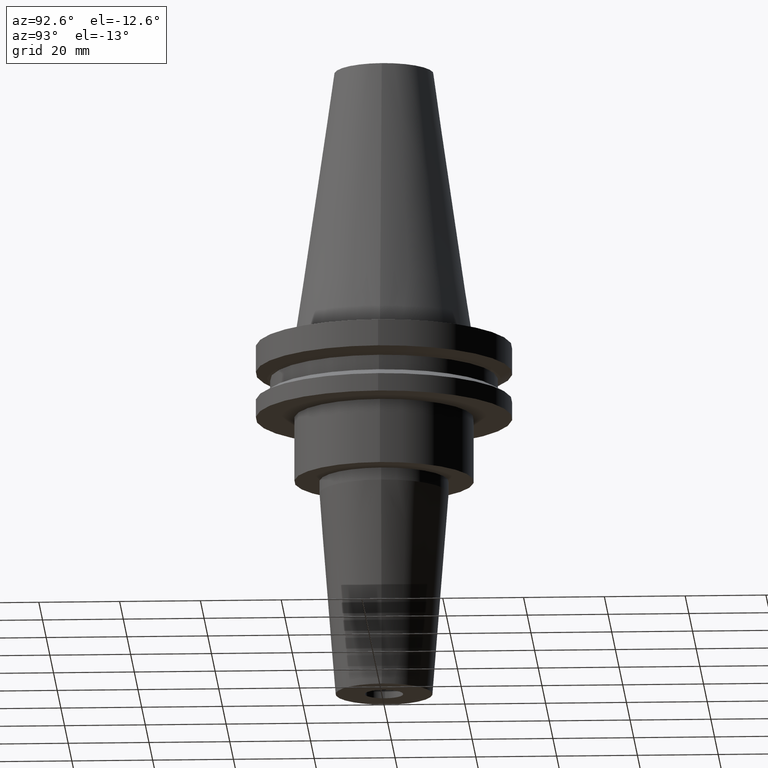
[diagram: clean part render]
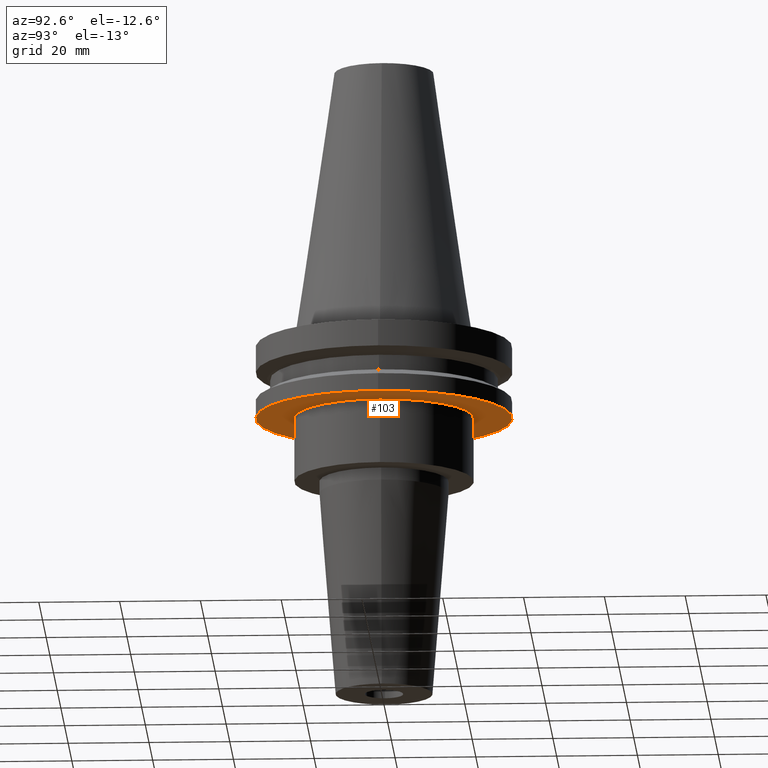
[diagram: same view with one face highlighted and labeled with its STEP entity id]
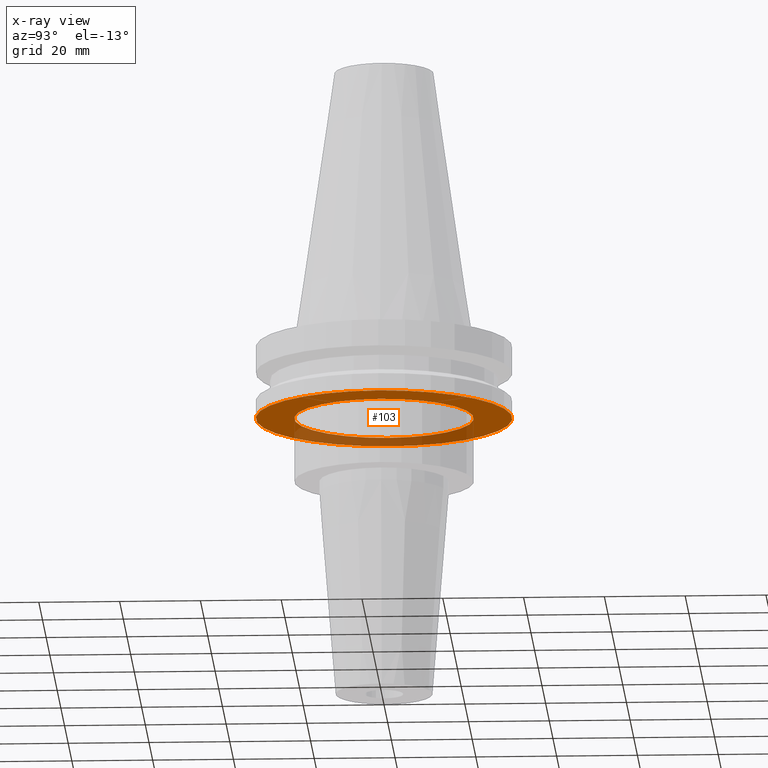
[diagram: x-ray of the same camera — body ghosted, the highlighted face saturated]
A machine part, auxiliary view. The second image highlights one B-rep face of the part: STEP entity #103.
The next image is the same camera in x-ray: the body ghosted, the highlighted face saturated — about 30% of this face is hidden behind the body in this view.
In plain terms, the highlighted planar face has unit normal (0, -0, 1).
Its self-contained STEP definition (entity closure, byte-faithful):
#7 = DIRECTION ( 'NONE',  ( 1.000000000000000000, 0.000000000000000000, 0.000000000000000000 ) ) ;
#18 = DIRECTION ( 'NONE',  ( 1.000000000000000000, 0.000000000000000000, 0.000000000000000000 ) ) ;
#20 = ORIENTED_EDGE ( 'NONE', *, *, #41, .F. ) ;
#41 = EDGE_CURVE ( 'NONE', #229, #67, #177, .T. ) ;
#56 = CIRCLE ( 'NONE', #540, 22.22500000000000142 ) ;
#67 = VERTEX_POINT ( 'NONE', #80 ) ;
#73 = DIRECTION ( 'NONE',  ( 1.000000000000000000, 0.000000000000000000, 0.000000000000000000 ) ) ;
#74 = CARTESIAN_POINT ( 'NONE',  ( 0.000000000000000000, 0.000000000000000000, -19.04999999999999716 ) ) ;
#80 = CARTESIAN_POINT ( 'NONE',  ( -31.74999999999999289, 3.888253587292845687E-15, -19.04999999999999716 ) ) ;
#103 = ADVANCED_FACE ( 'NONE', ( #405, #201 ), #282, .F. ) ;
#167 = CARTESIAN_POINT ( 'NONE',  ( 31.74999999999999289, 0.000000000000000000, -19.04999999999999716 ) ) ;
#177 = CIRCLE ( 'NONE', #253, 31.74999999999999289 ) ;
#201 = FACE_BOUND ( 'NONE', #276, .T. ) ;
#206 = CARTESIAN_POINT ( 'NONE',  ( 0.000000000000000000, 0.000000000000000000, -19.04999999999999716 ) ) ;
#216 = VERTEX_POINT ( 'NONE', #433 ) ;
#229 = VERTEX_POINT ( 'NONE', #167 ) ;
#253 = AXIS2_PLACEMENT_3D ( 'NONE', #74, #285, #412 ) ;
#276 = EDGE_LOOP ( 'NONE', ( #742, #339 ) ) ;
#282 = PLANE ( 'NONE',  #636 ) ;
#285 = DIRECTION ( 'NONE',  ( -0.000000000000000000, -0.000000000000000000, 1.000000000000000000 ) ) ;
#339 = ORIENTED_EDGE ( 'NONE', *, *, #818, .T. ) ;
#389 = EDGE_LOOP ( 'NONE', ( #20, #413 ) ) ;
#405 = FACE_OUTER_BOUND ( 'NONE', #389, .T. ) ;
#412 = DIRECTION ( 'NONE',  ( 1.000000000000000000, 0.000000000000000000, 0.000000000000000000 ) ) ;
#413 = ORIENTED_EDGE ( 'NONE', *, *, #521, .F. ) ;
#422 = DIRECTION ( 'NONE',  ( -0.000000000000000000, -0.000000000000000000, 1.000000000000000000 ) ) ;
#426 = VERTEX_POINT ( 'NONE', #589 ) ;
#433 = CARTESIAN_POINT ( 'NONE',  ( -22.22500000000000142, 2.721777511104992849E-15, -19.04999999999999716 ) ) ;
#473 = DIRECTION ( 'NONE',  ( 0.000000000000000000, -0.000000000000000000, 1.000000000000000000 ) ) ;
#478 = AXIS2_PLACEMENT_3D ( 'NONE', #206, #804, #73 ) ;
#521 = EDGE_CURVE ( 'NONE', #67, #229, #737, .T. ) ;
#540 = AXIS2_PLACEMENT_3D ( 'NONE', #811, #422, #677 ) ;
#589 = CARTESIAN_POINT ( 'NONE',  ( 22.22500000000000142, 0.000000000000000000, -19.04999999999999716 ) ) ;
#636 = AXIS2_PLACEMENT_3D ( 'NONE', #663, #473, #7 ) ;
#663 = CARTESIAN_POINT ( 'NONE',  ( 0.000000000000000000, 31.74999999999999289, -19.04999999999999716 ) ) ;
#677 = DIRECTION ( 'NONE',  ( 1.000000000000000000, 0.000000000000000000, 0.000000000000000000 ) ) ;
#693 = CARTESIAN_POINT ( 'NONE',  ( 0.000000000000000000, 0.000000000000000000, -19.04999999999999716 ) ) ;
#729 = AXIS2_PLACEMENT_3D ( 'NONE', #693, #829, #18 ) ;
#731 = EDGE_CURVE ( 'NONE', #426, #216, #783, .T. ) ;
#737 = CIRCLE ( 'NONE', #478, 31.74999999999999289 ) ;
#742 = ORIENTED_EDGE ( 'NONE', *, *, #731, .T. ) ;
#783 = CIRCLE ( 'NONE', #729, 22.22500000000000142 ) ;
#804 = DIRECTION ( 'NONE',  ( -0.000000000000000000, -0.000000000000000000, 1.000000000000000000 ) ) ;
#811 = CARTESIAN_POINT ( 'NONE',  ( 0.000000000000000000, 0.000000000000000000, -19.04999999999999716 ) ) ;
#818 = EDGE_CURVE ( 'NONE', #216, #426, #56, .T. ) ;
#829 = DIRECTION ( 'NONE',  ( -0.000000000000000000, -0.000000000000000000, 1.000000000000000000 ) ) ;